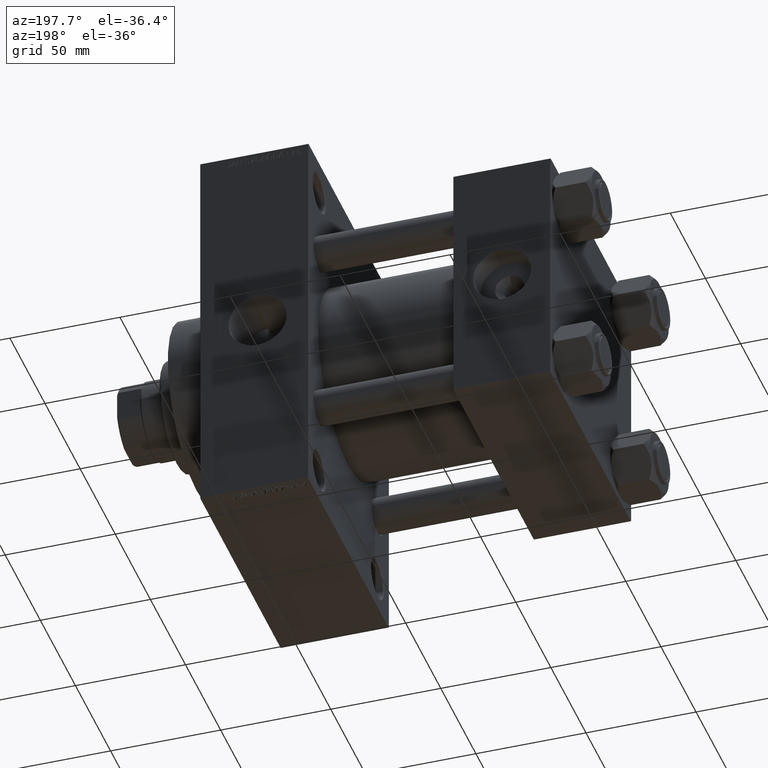
[diagram: clean part render]
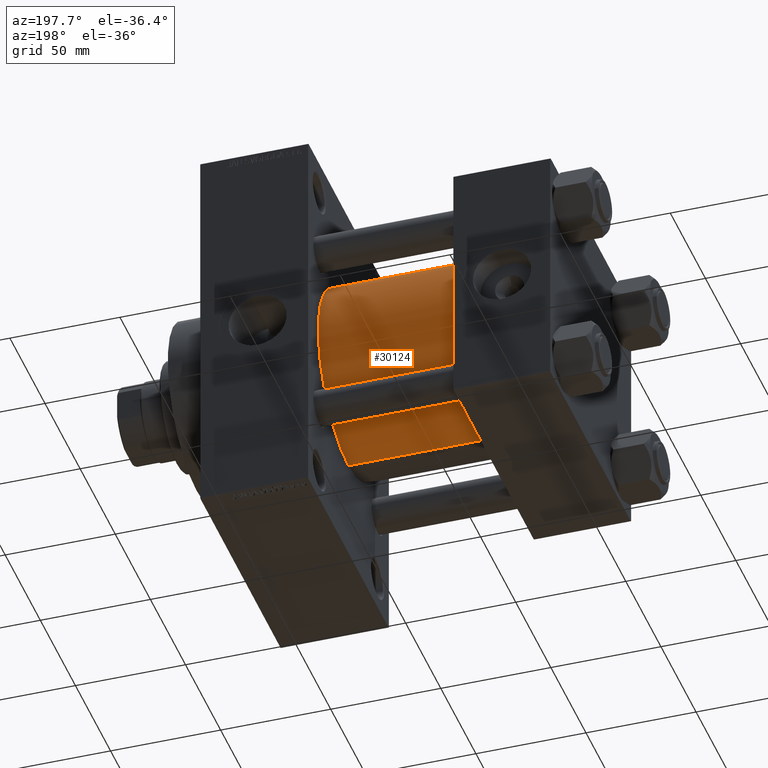
[diagram: same view with one face highlighted and labeled with its STEP entity id]
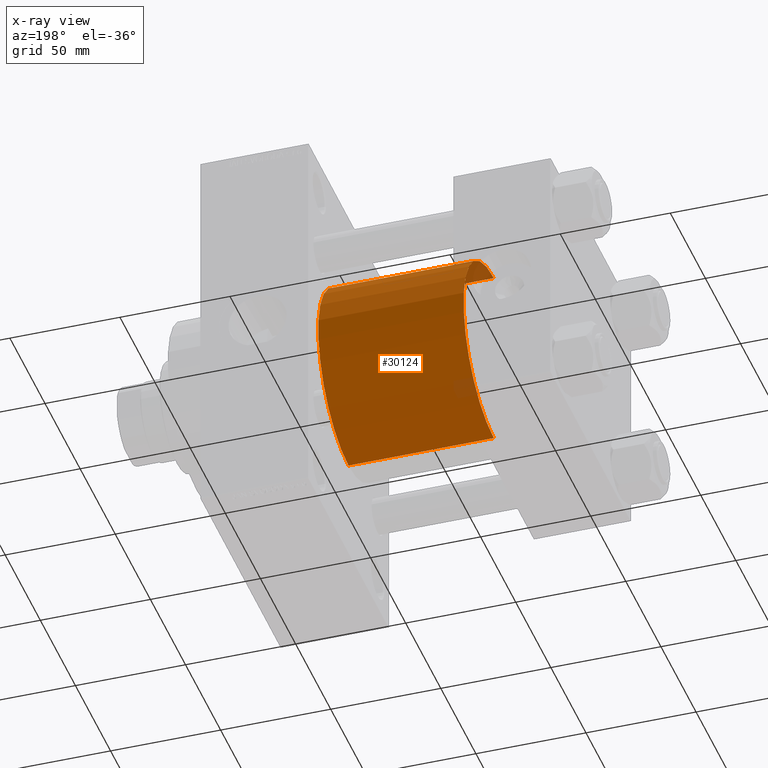
[diagram: x-ray of the same camera — body ghosted, the highlighted face saturated]
A machine part, auxiliary view. The second image highlights one B-rep face of the part: STEP entity #30124.
The next image is the same camera in x-ray: the body ghosted, the highlighted face saturated — about 3% of this face is hidden behind the body in this view.
In plain terms, the highlighted cylindrical surface (partial cylindrical patch) has radius 43 mm, axis along (-1, -0, -0).
Its self-contained STEP definition (entity closure, byte-faithful):
#1133 = DIRECTION ( 'NONE',  ( 0.000000000000000000, 0.000000000000000000, 1.000000000000000000 ) ) ;
#5855 = DIRECTION ( 'NONE',  ( 1.000000000000000000, 0.000000000000000000, 0.000000000000000000 ) ) ;
#6703 = CARTESIAN_POINT ( 'NONE',  ( 44.00000000000000000, 2.663896022368408223E-15, -43.00000000000000000 ) ) ;
#9205 = DIRECTION ( 'NONE',  ( 1.000000000000000000, -0.000000000000000000, 0.000000000000000000 ) ) ;
#9240 = VERTEX_POINT ( 'NONE', #39377 ) ;
#11127 = VERTEX_POINT ( 'NONE', #6703 ) ;
#11268 = CARTESIAN_POINT ( 'NONE',  ( 110.0000000000000000, -2.602085213965210642E-15, 43.00000000000000000 ) ) ;
#11649 = CIRCLE ( 'NONE', #42192, 43.00000000000000000 ) ;
#12964 = CYLINDRICAL_SURFACE ( 'NONE', #43631, 43.00000000000000000 ) ;
#14181 = VECTOR ( 'NONE', #39253, 1000.000000000000000 ) ;
#14405 = ORIENTED_EDGE ( 'NONE', *, *, #35238, .F. ) ;
#14895 = ORIENTED_EDGE ( 'NONE', *, *, #14909, .T. ) ;
#14909 = EDGE_CURVE ( 'NONE', #9240, #11127, #16081, .T. ) ;
#15048 = VECTOR ( 'NONE', #40090, 1000.000000000000000 ) ;
#16081 = LINE ( 'NONE', #42532, #14181 ) ;
#16451 = ORIENTED_EDGE ( 'NONE', *, *, #41077, .F. ) ;
#18698 = AXIS2_PLACEMENT_3D ( 'NONE', #21013, #9205, #1133 ) ;
#21013 = CARTESIAN_POINT ( 'NONE',  ( 44.00000000000000000, -2.602085213965210642E-15, 0.000000000000000000 ) ) ;
#21526 = DIRECTION ( 'NONE',  ( -1.000000000000000000, -0.000000000000000000, -0.000000000000000000 ) ) ;
#23502 = CIRCLE ( 'NONE', #18698, 43.00000000000000000 ) ;
#26570 = EDGE_CURVE ( 'NONE', #11127, #36769, #23502, .T. ) ;
#28444 = CARTESIAN_POINT ( 'NONE',  ( 44.00000000000000000, -2.602085213965210642E-15, 43.00000000000000000 ) ) ;
#28500 = CARTESIAN_POINT ( 'NONE',  ( 110.0000000000000000, -2.602085213965210642E-15, 0.000000000000000000 ) ) ;
#28728 = VERTEX_POINT ( 'NONE', #31431 ) ;
#30124 = ADVANCED_FACE ( 'NONE', ( #40421 ), #12964, .T. ) ;
#31431 = CARTESIAN_POINT ( 'NONE',  ( 110.0000000000000000, -2.602085213965210642E-15, 43.00000000000000000 ) ) ;
#35238 = EDGE_CURVE ( 'NONE', #9240, #28728, #11649, .T. ) ;
#36769 = VERTEX_POINT ( 'NONE', #28444 ) ;
#37050 = DIRECTION ( 'NONE',  ( 0.000000000000000000, 0.000000000000000000, -1.000000000000000000 ) ) ;
#37989 = EDGE_LOOP ( 'NONE', ( #14405, #14895, #44178, #16451 ) ) ;
#39253 = DIRECTION ( 'NONE',  ( -1.000000000000000000, -0.000000000000000000, -0.000000000000000000 ) ) ;
#39377 = CARTESIAN_POINT ( 'NONE',  ( 110.0000000000000000, 2.663896022368408223E-15, -43.00000000000000000 ) ) ;
#40090 = DIRECTION ( 'NONE',  ( -1.000000000000000000, -0.000000000000000000, -0.000000000000000000 ) ) ;
#40421 = FACE_OUTER_BOUND ( 'NONE', #37989, .T. ) ;
#40664 = CARTESIAN_POINT ( 'NONE',  ( 110.0000000000000000, -2.602085213965210642E-15, 0.000000000000000000 ) ) ;
#41077 = EDGE_CURVE ( 'NONE', #28728, #36769, #45733, .T. ) ;
#42192 = AXIS2_PLACEMENT_3D ( 'NONE', #28500, #5855, #37050 ) ;
#42532 = CARTESIAN_POINT ( 'NONE',  ( 110.0000000000000000, 2.663896022368408223E-15, -43.00000000000000000 ) ) ;
#43631 = AXIS2_PLACEMENT_3D ( 'NONE', #40664, #21526, #44174 ) ;
#44174 = DIRECTION ( 'NONE',  ( 0.000000000000000000, 0.000000000000000000, 1.000000000000000000 ) ) ;
#44178 = ORIENTED_EDGE ( 'NONE', *, *, #26570, .T. ) ;
#45733 = LINE ( 'NONE', #11268, #15048 ) ;